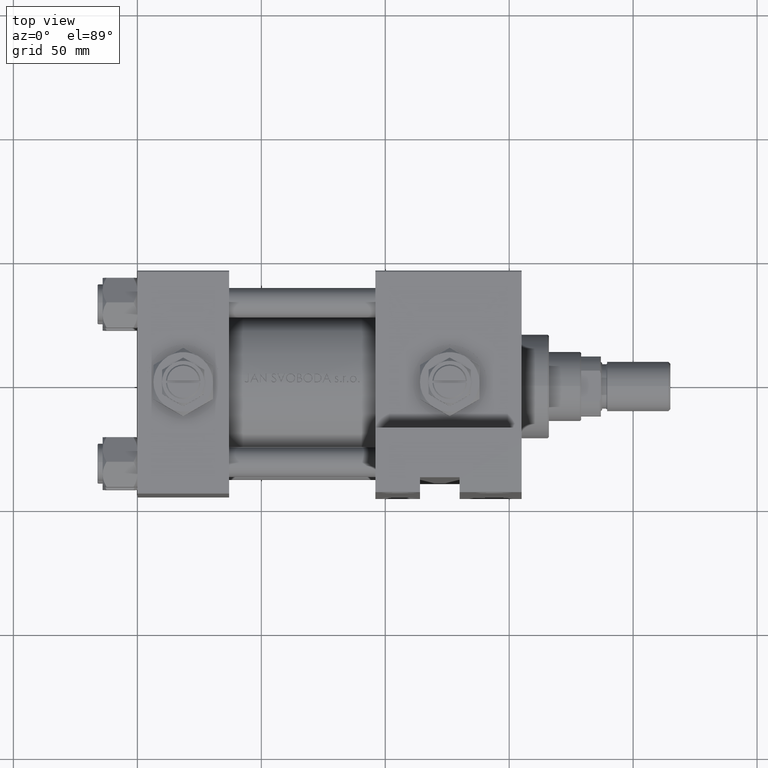
[diagram: clean part render]
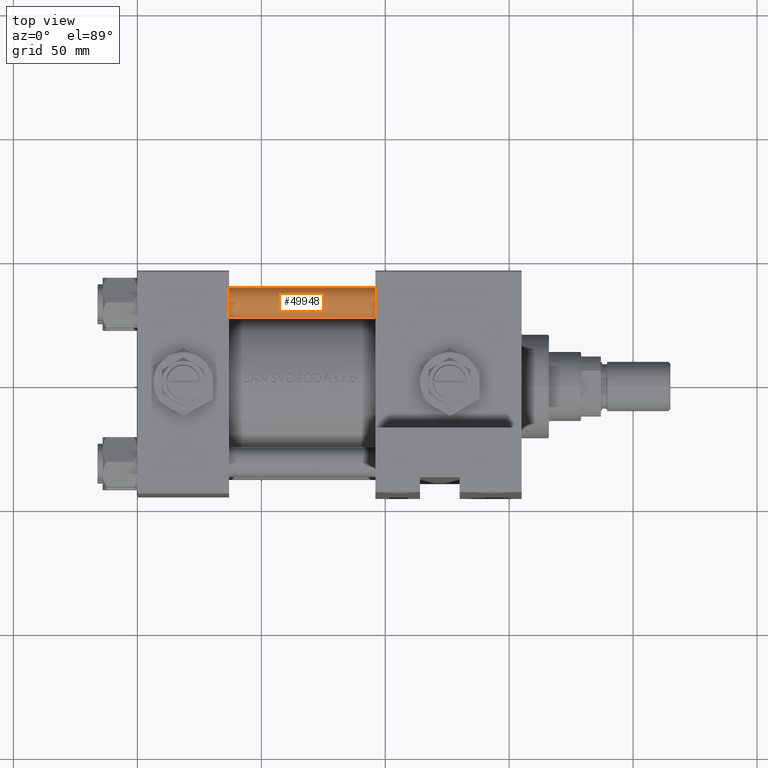
[diagram: same view with one face highlighted and labeled with its STEP entity id]
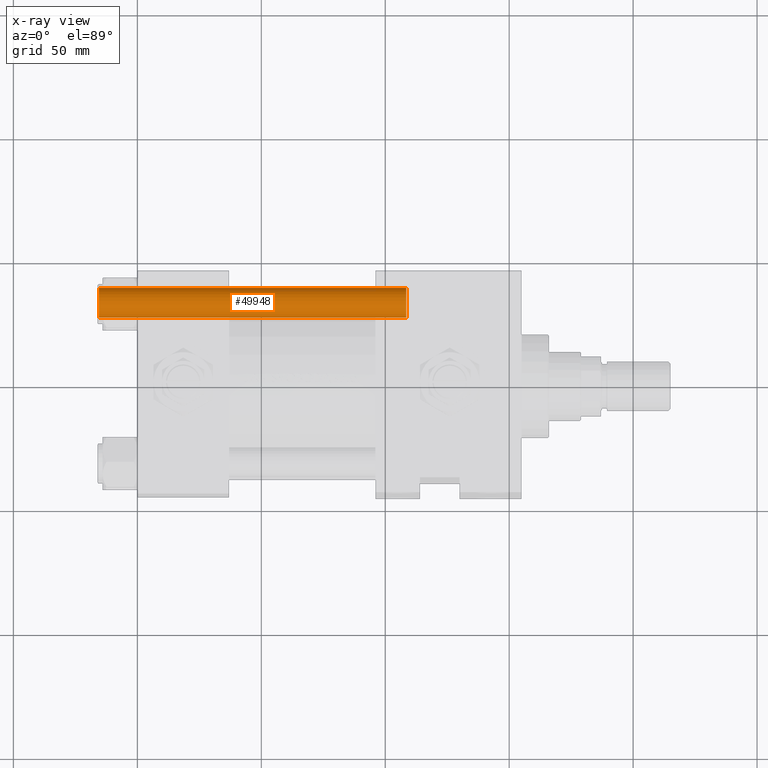
[diagram: x-ray of the same camera — body ghosted, the highlighted face saturated]
A machine part, top view. The second image highlights one B-rep face of the part: STEP entity #49948.
The next image is the same camera in x-ray: the body ghosted, the highlighted face saturated — about 0% of this face is hidden behind the body in this view.
In plain terms, the highlighted cylindrical surface (edge-blend (fillet) strip) has radius 6 mm, axis along (1, -0, 0).
Its self-contained STEP definition (entity closure, byte-faithful):
#403 = CARTESIAN_POINT ( 'NONE',  ( -6.000000000000000888, 0.000000000000000000, 0.4999999999999865663 ) ) ;
#1907 = DIRECTION ( 'NONE',  ( 1.000000000000000000, 0.000000000000000000, 0.000000000000000000 ) ) ;
#1982 = EDGE_CURVE ( 'NONE', #2195, #42337, #4017, .T. ) ;
#2195 = VERTEX_POINT ( 'NONE', #41504 ) ;
#4017 = LINE ( 'NONE', #46378, #11922 ) ;
#4075 = CARTESIAN_POINT ( 'NONE',  ( -6.000000000000000888, 0.000000000000000000, 124.5000000000000000 ) ) ;
#6393 = EDGE_CURVE ( 'NONE', #2195, #12442, #39627, .T. ) ;
#6516 = DIRECTION ( 'NONE',  ( -0.000000000000000000, -0.000000000000000000, -1.000000000000000000 ) ) ;
#9968 = CARTESIAN_POINT ( 'NONE',  ( 6.000000000000000888, 7.347880794884120722E-16, 0.4999999999999865663 ) ) ;
#10979 = CARTESIAN_POINT ( 'NONE',  ( 0.000000000000000000, 0.000000000000000000, 0.4999999999999865663 ) ) ;
#11922 = VECTOR ( 'NONE', #26579, 1000.000000000000000 ) ;
#12122 = EDGE_CURVE ( 'NONE', #16547, #42337, #49974, .T. ) ;
#12442 = VERTEX_POINT ( 'NONE', #4075 ) ;
#13573 = EDGE_LOOP ( 'NONE', ( #26784, #22394, #40614, #29353 ) ) ;
#14021 = DIRECTION ( 'NONE',  ( 1.000000000000000000, 0.000000000000000000, 0.000000000000000000 ) ) ;
#16547 = VERTEX_POINT ( 'NONE', #403 ) ;
#17661 = VECTOR ( 'NONE', #6516, 1000.000000000000000 ) ;
#17780 = AXIS2_PLACEMENT_3D ( 'NONE', #36866, #17868, #1907 ) ;
#17868 = DIRECTION ( 'NONE',  ( 0.000000000000000000, 0.000000000000000000, -1.000000000000000000 ) ) ;
#20450 = DIRECTION ( 'NONE',  ( -1.000000000000000000, 0.000000000000000000, 0.000000000000000000 ) ) ;
#20943 = FACE_OUTER_BOUND ( 'NONE', #13573, .T. ) ;
#22394 = ORIENTED_EDGE ( 'NONE', *, *, #6393, .T. ) ;
#22395 = DIRECTION ( 'NONE',  ( -0.000000000000000000, -0.000000000000000000, 1.000000000000000000 ) ) ;
#23985 = CYLINDRICAL_SURFACE ( 'NONE', #36634, 6.000000000000000888 ) ;
#24240 = DIRECTION ( 'NONE',  ( -0.000000000000000000, -0.000000000000000000, -1.000000000000000000 ) ) ;
#25773 = CARTESIAN_POINT ( 'NONE',  ( -6.000000000000000888, 0.000000000000000000, 125.0000000000000000 ) ) ;
#26579 = DIRECTION ( 'NONE',  ( -0.000000000000000000, -0.000000000000000000, -1.000000000000000000 ) ) ;
#26784 = ORIENTED_EDGE ( 'NONE', *, *, #1982, .F. ) ;
#29353 = ORIENTED_EDGE ( 'NONE', *, *, #12122, .T. ) ;
#31329 = AXIS2_PLACEMENT_3D ( 'NONE', #10979, #22395, #14021 ) ;
#36412 = CARTESIAN_POINT ( 'NONE',  ( 0.000000000000000000, 0.000000000000000000, 125.0000000000000000 ) ) ;
#36634 = AXIS2_PLACEMENT_3D ( 'NONE', #36412, #24240, #20450 ) ;
#36866 = CARTESIAN_POINT ( 'NONE',  ( 0.000000000000000000, 0.000000000000000000, 124.5000000000000000 ) ) ;
#37254 = EDGE_CURVE ( 'NONE', #12442, #16547, #49390, .T. ) ;
#39627 = CIRCLE ( 'NONE', #17780, 6.000000000000000888 ) ;
#40614 = ORIENTED_EDGE ( 'NONE', *, *, #37254, .T. ) ;
#41504 = CARTESIAN_POINT ( 'NONE',  ( 6.000000000000000888, 7.347880794884120722E-16, 124.5000000000000000 ) ) ;
#42337 = VERTEX_POINT ( 'NONE', #9968 ) ;
#46378 = CARTESIAN_POINT ( 'NONE',  ( 6.000000000000000888, 7.347880794884120722E-16, 125.0000000000000000 ) ) ;
#49390 = LINE ( 'NONE', #25773, #17661 ) ;
#49948 = ADVANCED_FACE ( 'NONE', ( #20943 ), #23985, .T. ) ;
#49974 = CIRCLE ( 'NONE', #31329, 6.000000000000000888 ) ;